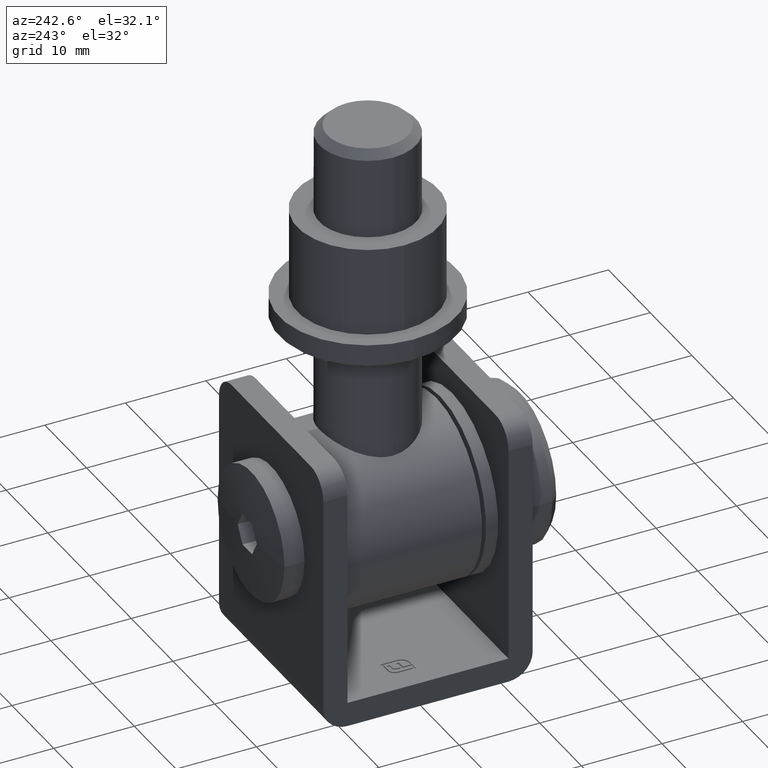
[diagram: clean part render]
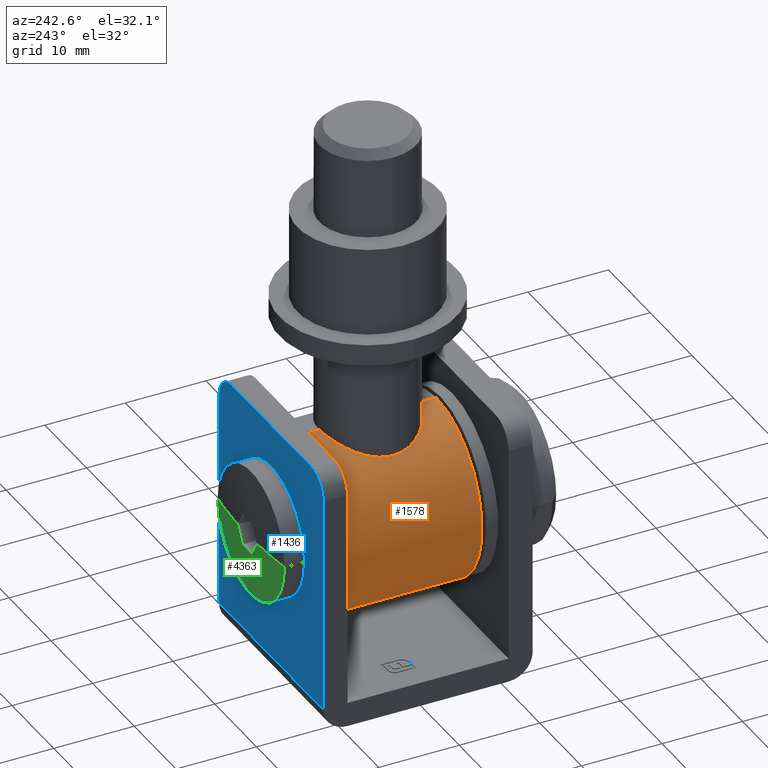
[diagram: same view with three faces highlighted in distinct colors, each labeled with its STEP entity id]
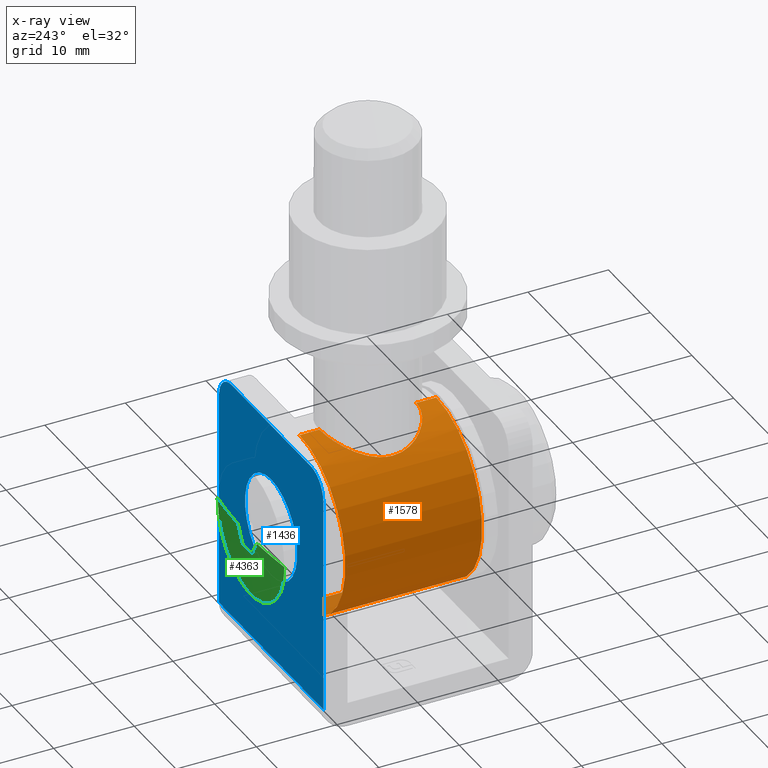
[diagram: x-ray of the same camera — body ghosted, the three highlighted faces saturated]
A machine part, auxiliary view with three faces highlighted in distinct colors.
The next image is the same camera in x-ray (body ghosted, the three faces saturated) — at least one of them is partly hidden behind the body in this view.
Their STEP definitions:

[orange] entity #1578 — the highlighted cylindrical surface (partial cylindrical patch) has radius 11 mm, axis along (-0, -1, -0).
#10 = CARTESIAN_POINT ( 'NONE',  ( -4.513457185459233578, -3.971868827695192561, 21.03569045006614857 ) ) ;
#57 = CARTESIAN_POINT ( 'NONE',  ( -5.791253910990268317, -1.581255140548660787, 20.35232784984154009 ) ) ;
#203 = EDGE_CURVE ( 'NONE', #4862, #2101, #4076, .T. ) ;
#292 = VECTOR ( 'NONE', #5458, 1000.000000000000000 ) ;
#312 = EDGE_CURVE ( 'NONE', #2101, #1253, #13552, .T. ) ;
#581 = DIRECTION ( 'NONE',  ( -0.000000000000000000, -1.000000000000000000, -0.000000000000000000 ) ) ;
#756 = VERTEX_POINT ( 'NONE', #3815 ) ;
#769 = CARTESIAN_POINT ( 'NONE',  ( -1.001046619249588598, 5.919240007934912562, 21.95610729366966041 ) ) ;
#860 = CARTESIAN_POINT ( 'NONE',  ( -3.975785081487944961, 4.497837721262770039, 21.25760115227601688 ) ) ;
#1053 = CYLINDRICAL_SURFACE ( 'NONE', #3386, 11.00000000000000000 ) ;
#1176 = CARTESIAN_POINT ( 'NONE',  ( -2.143428767652197475, -5.607477301903873723, 21.79071834266022023 ) ) ;
#1222 = ORIENTED_EDGE ( 'NONE', *, *, #203, .F. ) ;
#1253 = VERTEX_POINT ( 'NONE', #12366 ) ;
#1378 = DIRECTION ( 'NONE',  ( -0.000000000000000000, -1.000000000000000000, -0.000000000000000000 ) ) ;
#1430 = EDGE_CURVE ( 'NONE', #756, #5301, #7629, .T. ) ;
#1578 = ADVANCED_FACE ( 'NONE', ( #9820 ), #1053, .T. ) ;
#1804 = CIRCLE ( 'NONE', #9897, 11.00000000000000000 ) ;
#1994 = CARTESIAN_POINT ( 'NONE',  ( -6.000000000000000888, 7.347873932393515319E-16, 20.21954445729288707 ) ) ;
#2101 = VERTEX_POINT ( 'NONE', #7552 ) ;
#2239 = EDGE_CURVE ( 'NONE', #5301, #4862, #3499, .T. ) ;
#2349 = CARTESIAN_POINT ( 'NONE',  ( -4.761499154567924386, -3.671170907450591603, 20.91900688134670716 ) ) ;
#2447 = CARTESIAN_POINT ( 'NONE',  ( -1.386829978470363045, -5.840981533653454072, 21.91402477991755759 ) ) ;
#2798 = CARTESIAN_POINT ( 'NONE',  ( 1.347111479062088405E-15, 8.500000000000000000, 22.00000000000000000 ) ) ;
#3070 = CARTESIAN_POINT ( 'NONE',  ( -4.523571659675896584, 3.960355311190218330, 21.03111966752034334 ) ) ;
#3261 = CARTESIAN_POINT ( 'NONE',  ( -1.292941717051143813E-15, 6.000000000000042633, 22.00000000000002132 ) ) ;
#3305 = CARTESIAN_POINT ( 'NONE',  ( -1.292941717051143813E-15, 6.000000000000042633, 22.00000000000002132 ) ) ;
#3386 = AXIS2_PLACEMENT_3D ( 'NONE', #6304, #581, #14734 ) ;
#3499 = B_SPLINE_CURVE_WITH_KNOTS ( 'NONE', 3,
 ( #3261, #7746, #7900, #5562, #769, #11285, #13762, #13712, #5466, #13658, #5517, #11439, #7854, #860, #4342, #3070, #12476, #4292, #6693, #8933, #12519, #12426, #6651, #14914, #7797, #1994 ),
 .UNSPECIFIED., .F., .F.,
 ( 4, 2, 2, 2, 2, 2, 2, 2, 2, 2, 2, 2, 4 ),
 ( 0.009581549305124266100, 0.01017984123933994393, 0.01077813317355562177, 0.01137642510777129960, 0.01197471704198697744, 0.01317130091041833310, 0.01376959284463400920, 0.01436788477884968704, 0.01556446864728104271, 0.01676105251571239838, 0.01735934444992807274, 0.01795763638414375404, 0.01915422025257510624 ),
 .UNSPECIFIED. ) ;
#3574 = CARTESIAN_POINT ( 'NONE',  ( -5.377850147246014956, -2.689548255154488476, 20.59739079401868977 ) ) ;
#3621 = CARTESIAN_POINT ( 'NONE',  ( 0.000000000000000000, 8.500000000000000000, 11.00000000000000000 ) ) ;
#3641 = VERTEX_POINT ( 'NONE', #5719 ) ;
#3763 = DIRECTION ( 'NONE',  ( 0.000000000000000000, 1.000000000000000000, 0.000000000000000000 ) ) ;
#3815 = CARTESIAN_POINT ( 'NONE',  ( 1.347111479062088405E-15, 8.500000000000000000, 22.00000000000000000 ) ) ;
#4076 = B_SPLINE_CURVE_WITH_KNOTS ( 'NONE', 3,
 ( #4758, #8109, #4610, #14065, #57, #9432, #11806, #3574, #5879, #2349, #10, #14157, #12777, #8153, #11654, #1176, #10557, #9342, #2447, #5772, #13969, #10612 ),
 .UNSPECIFIED., .F., .F.,
 ( 4, 2, 2, 2, 2, 2, 2, 2, 2, 2, 4 ),
 ( 0.01915422025257510624, 0.02034937374240532518, 0.02094695048732043291, 0.02154452723223554064, 0.02273968072206575958, 0.02393483421189597851, 0.02512998770172619745, 0.02632514119155641985, 0.02692271793647153105, 0.02752029468138664225, 0.02871544817121686466 ),
 .UNSPECIFIED. ) ;
#4292 = CARTESIAN_POINT ( 'NONE',  ( -5.201053738164421958, 3.016632186587868691, 20.69576801486032025 ) ) ;
#4342 = CARTESIAN_POINT ( 'NONE',  ( -4.117747638638323160, 4.368172738372697594, 21.20125825428278787 ) ) ;
#4610 = CARTESIAN_POINT ( 'NONE',  ( -5.958863529669606862, -0.8059955195657841909, 20.24665908453231467 ) ) ;
#4758 = CARTESIAN_POINT ( 'NONE',  ( -6.000000000000000888, 7.347873932393515319E-16, 20.21954445729288707 ) ) ;
#4862 = VERTEX_POINT ( 'NONE', #7861 ) ;
#4894 = CARTESIAN_POINT ( 'NONE',  ( 0.000000000000000000, -8.500000000000000000, 11.00000000000000000 ) ) ;
#4951 = EDGE_CURVE ( 'NONE', #14796, #756, #11208, .T. ) ;
#5301 = VERTEX_POINT ( 'NONE', #3305 ) ;
#5458 = DIRECTION ( 'NONE',  ( -0.000000000000000000, -1.000000000000000000, -0.000000000000000000 ) ) ;
#5466 = CARTESIAN_POINT ( 'NONE',  ( -2.150698647737687264, 5.604767092694154407, 21.78930433538998557 ) ) ;
#5517 = CARTESIAN_POINT ( 'NONE',  ( -3.037965804154589833, 5.188640270768133611, 21.57758205013321628 ) ) ;
#5562 = CARTESIAN_POINT ( 'NONE',  ( -0.8038411932375235658, 5.949298266934230917, 21.97241367963327008 ) ) ;
#5719 = CARTESIAN_POINT ( 'NONE',  ( 0.000000000000000000, -8.500000000000000000, 0.000000000000000000 ) ) ;
#5772 = CARTESIAN_POINT ( 'NONE',  ( -0.7960875477184911064, -5.960511326977456115, 21.97830504949292774 ) ) ;
#5879 = CARTESIAN_POINT ( 'NONE',  ( -5.193145506896128083, -3.029952107685403906, 20.69999028119921292 ) ) ;
#5973 = DIRECTION ( 'NONE',  ( 0.000000000000000000, 0.000000000000000000, 1.000000000000000000 ) ) ;
#6078 = ORIENTED_EDGE ( 'NONE', *, *, #13196, .T. ) ;
#6304 = CARTESIAN_POINT ( 'NONE',  ( 0.000000000000000000, 8.500000000000000000, 11.00000000000000000 ) ) ;
#6651 = CARTESIAN_POINT ( 'NONE',  ( -5.842202551572516889, 1.381458331519348048, 20.32045302998344383 ) ) ;
#6693 = CARTESIAN_POINT ( 'NONE',  ( -5.383966512014681349, 2.676570559333717902, 20.59390977538225442 ) ) ;
#7552 = CARTESIAN_POINT ( 'NONE',  ( 1.347111063493796830E-15, -6.000000000000000888, 22.00000000000000000 ) ) ;
#7629 = LINE ( 'NONE', #2798, #9092 ) ;
#7660 = VECTOR ( 'NONE', #1378, 1000.000000000000000 ) ;
#7746 = CARTESIAN_POINT ( 'NONE',  ( -0.2009006042407775194, 6.000000000000026645, 22.00000000000001421 ) ) ;
#7797 = CARTESIAN_POINT ( 'NONE',  ( -6.000000000000001776, 0.3997942723990183245, 20.21954445729288352 ) ) ;
#7854 = CARTESIAN_POINT ( 'NONE',  ( -3.677841293588136384, 4.744564742963712334, 21.36815952001772700 ) ) ;
#7861 = CARTESIAN_POINT ( 'NONE',  ( -6.000000000000000888, 7.347873932393515319E-16, 20.21954445729288707 ) ) ;
#7900 = CARTESIAN_POINT ( 'NONE',  ( -0.4043319050806992165, 5.989726725271028229, 21.99438667372957923 ) ) ;
#8109 = CARTESIAN_POINT ( 'NONE',  ( -6.000000000000000000, -0.3993163642580316863, 20.21954445729289063 ) ) ;
#8153 = CARTESIAN_POINT ( 'NONE',  ( -3.027592523495518329, -5.194801538401251584, 21.58060374468183440 ) ) ;
#8630 = ORIENTED_EDGE ( 'NONE', *, *, #312, .F. ) ;
#8933 = CARTESIAN_POINT ( 'NONE',  ( -5.609246724634285641, 2.138722170497243891, 20.46276393171398666 ) ) ;
#9092 = VECTOR ( 'NONE', #9880, 1000.000000000000000 ) ;
#9342 = CARTESIAN_POINT ( 'NONE',  ( -1.581400185261139679, -5.791221588511754170, 21.88741450015095680 ) ) ;
#9407 = ORIENTED_EDGE ( 'NONE', *, *, #4951, .F. ) ;
#9432 = CARTESIAN_POINT ( 'NONE',  ( -5.674758499177897875, -1.958597880392970225, 20.42346932124734238 ) ) ;
#9473 = DIRECTION ( 'NONE',  ( 0.000000000000000000, 0.000000000000000000, 1.000000000000000000 ) ) ;
#9533 = EDGE_CURVE ( 'NONE', #3641, #1253, #1804, .T. ) ;
#9820 = FACE_OUTER_BOUND ( 'NONE', #12377, .T. ) ;
#9880 = DIRECTION ( 'NONE',  ( -0.000000000000000000, -1.000000000000000000, -0.000000000000000000 ) ) ;
#9894 = CARTESIAN_POINT ( 'NONE',  ( 0.000000000000000000, 8.500000000000000000, 0.000000000000000000 ) ) ;
#9897 = AXIS2_PLACEMENT_3D ( 'NONE', #4894, #3763, #9473 ) ;
#10094 = CARTESIAN_POINT ( 'NONE',  ( 0.000000000000000000, 8.500000000000000000, 0.000000000000000000 ) ) ;
#10557 = CARTESIAN_POINT ( 'NONE',  ( -1.959143855972670378, -5.674577463106227349, 21.82581989484610929 ) ) ;
#10612 = CARTESIAN_POINT ( 'NONE',  ( 1.347111063493796830E-15, -6.000000000000000888, 22.00000000000000000 ) ) ;
#11208 = CIRCLE ( 'NONE', #12615, 11.00000000000000000 ) ;
#11255 = LINE ( 'NONE', #10094, #292 ) ;
#11285 = CARTESIAN_POINT ( 'NONE',  ( -1.390547778561539882, 5.840023414421033010, 21.91351264441701474 ) ) ;
#11439 = CARTESIAN_POINT ( 'NONE',  ( -3.521227206168301649, 4.861971306394409886, 21.42255144032249348 ) ) ;
#11654 = CARTESIAN_POINT ( 'NONE',  ( -2.683240172933292644, -5.380759841121096620, 21.67407040940090113 ) ) ;
#11806 = CARTESIAN_POINT ( 'NONE',  ( -5.606815275045871516, -2.145310694811336738, 20.46421777202687764 ) ) ;
#11904 = DIRECTION ( 'NONE',  ( 0.000000000000000000, 1.000000000000000000, 0.000000000000000000 ) ) ;
#12199 = ORIENTED_EDGE ( 'NONE', *, *, #2239, .F. ) ;
#12366 = CARTESIAN_POINT ( 'NONE',  ( 1.347111479062088405E-15, -8.500000000000000000, 22.00000000000000000 ) ) ;
#12377 = EDGE_LOOP ( 'NONE', ( #14044, #9407, #6078, #12825, #8630, #1222, #12199 ) ) ;
#12426 = CARTESIAN_POINT ( 'NONE',  ( -5.792493358737633713, 1.576748181494528112, 20.35155989378462849 ) ) ;
#12476 = CARTESIAN_POINT ( 'NONE',  ( -4.768448969441598351, 3.662365924134748596, 20.91568312377386718 ) ) ;
#12519 = CARTESIAN_POINT ( 'NONE',  ( -5.676086657068316832, 1.954777327553430144, 20.42266904966485441 ) ) ;
#12615 = AXIS2_PLACEMENT_3D ( 'NONE', #3621, #11904, #5973 ) ;
#12777 = CARTESIAN_POINT ( 'NONE',  ( -3.674963401419040210, -4.758878387806581678, 21.37353055080726705 ) ) ;
#12825 = ORIENTED_EDGE ( 'NONE', *, *, #9533, .T. ) ;
#13196 = EDGE_CURVE ( 'NONE', #14796, #3641, #11255, .T. ) ;
#13552 = LINE ( 'NONE', #14206, #7660 ) ;
#13658 = CARTESIAN_POINT ( 'NONE',  ( -2.695984163703990522, 5.374694850497953702, 21.67099059362535129 ) ) ;
#13712 = CARTESIAN_POINT ( 'NONE',  ( -1.962579997959062128, 5.673427325574507130, 21.82521551752637734 ) ) ;
#13762 = CARTESIAN_POINT ( 'NONE',  ( -1.582843112943105313, 5.790863972394197035, 21.88722273718562050 ) ) ;
#13969 = CARTESIAN_POINT ( 'NONE',  ( -0.3994412993526967881, -6.000000000000000888, 21.99999999999998579 ) ) ;
#14044 = ORIENTED_EDGE ( 'NONE', *, *, #1430, .F. ) ;
#14065 = CARTESIAN_POINT ( 'NONE',  ( -5.840218722010387609, -1.389700008914172669, 20.32169700091013453 ) ) ;
#14157 = CARTESIAN_POINT ( 'NONE',  ( -3.971125235236089068, -4.514111442516841599, 21.26238485638662112 ) ) ;
#14206 = CARTESIAN_POINT ( 'NONE',  ( 1.347111479062088405E-15, 8.500000000000000000, 22.00000000000000000 ) ) ;
#14734 = DIRECTION ( 'NONE',  ( 0.000000000000000000, 0.000000000000000000, -1.000000000000000000 ) ) ;
#14796 = VERTEX_POINT ( 'NONE', #9894 ) ;
#14914 = CARTESIAN_POINT ( 'NONE',  ( -5.960442806589016485, 0.7950802793931016632, 20.24563804722491867 ) ) ;

[blue] entity #1436 — the highlighted planar face has unit normal (0, -1, 0).
#330 = CARTESIAN_POINT ( 'NONE',  ( -9.500000000000001776, 13.00000000000000178, 15.00000000000000000 ) ) ;
#388 = CARTESIAN_POINT ( 'NONE',  ( 12.50000000000000000, 13.00000000000000178, 15.00000000000000000 ) ) ;
#400 = ORIENTED_EDGE ( 'NONE', *, *, #6115, .F. ) ;
#618 = ORIENTED_EDGE ( 'NONE', *, *, #4459, .F. ) ;
#817 = ORIENTED_EDGE ( 'NONE', *, *, #12028, .F. ) ;
#827 = CARTESIAN_POINT ( 'NONE',  ( 9.500000000000001776, 13.00000000000000178, 12.00000000000000000 ) ) ;
#1165 = LINE ( 'NONE', #6148, #8646 ) ;
#1230 = VECTOR ( 'NONE', #9088, 1000.000000000000000 ) ;
#1273 = AXIS2_PLACEMENT_3D ( 'NONE', #827, #12531, #10156 ) ;
#1436 = ADVANCED_FACE ( 'NONE', ( #12225, #15137 ), #7373, .F. ) ;
#1572 = CARTESIAN_POINT ( 'NONE',  ( -9.500000000000001776, 13.00000000000000178, 12.00000000000000000 ) ) ;
#1600 = AXIS2_PLACEMENT_3D ( 'NONE', #3501, #12856, #6002 ) ;
#1785 = LINE ( 'NONE', #11171, #13694 ) ;
#1863 = DIRECTION ( 'NONE',  ( 0.000000000000000000, 1.000000000000000000, 0.000000000000000000 ) ) ;
#1952 = EDGE_CURVE ( 'NONE', #8049, #12206, #5986, .T. ) ;
#2185 = LINE ( 'NONE', #8243, #13556 ) ;
#2426 = DIRECTION ( 'NONE',  ( -1.000000000000000000, 0.000000000000000000, 0.000000000000000000 ) ) ;
#2524 = ORIENTED_EDGE ( 'NONE', *, *, #1952, .F. ) ;
#2567 = DIRECTION ( 'NONE',  ( -0.000000000000000000, -0.000000000000000000, 1.000000000000000000 ) ) ;
#2757 = EDGE_CURVE ( 'NONE', #5582, #6417, #1785, .T. ) ;
#2761 = DIRECTION ( 'NONE',  ( 0.000000000000000000, 0.000000000000000000, -1.000000000000000000 ) ) ;
#2842 = AXIS2_PLACEMENT_3D ( 'NONE', #4157, #1863, #5332 ) ;
#3142 = VERTEX_POINT ( 'NONE', #14381 ) ;
#3501 = CARTESIAN_POINT ( 'NONE',  ( 0.000000000000000000, 13.00000000000000178, 1.749999999999999778 ) ) ;
#4104 = VERTEX_POINT ( 'NONE', #7481 ) ;
#4157 = CARTESIAN_POINT ( 'NONE',  ( 0.000000000000000000, 13.00000000000000178, 1.749999999999999778 ) ) ;
#4432 = CIRCLE ( 'NONE', #1273, 2.999999999999999112 ) ;
#4459 = EDGE_CURVE ( 'NONE', #4104, #14011, #1165, .T. ) ;
#5332 = DIRECTION ( 'NONE',  ( 0.000000000000000000, 0.000000000000000000, 1.000000000000000000 ) ) ;
#5370 = EDGE_LOOP ( 'NONE', ( #8806, #5870, #2524, #9507, #618, #8688 ) ) ;
#5582 = VERTEX_POINT ( 'NONE', #6413 ) ;
#5870 = ORIENTED_EDGE ( 'NONE', *, *, #14628, .T. ) ;
#5986 = LINE ( 'NONE', #6621, #1230 ) ;
#6002 = DIRECTION ( 'NONE',  ( 0.000000000000000000, 0.000000000000000000, 1.000000000000000000 ) ) ;
#6077 = EDGE_CURVE ( 'NONE', #8049, #14011, #4432, .T. ) ;
#6115 = EDGE_CURVE ( 'NONE', #3142, #10489, #8992, .T. ) ;
#6148 = CARTESIAN_POINT ( 'NONE',  ( 12.50000000000000000, 13.00000000000000178, 15.00000000000000000 ) ) ;
#6413 = CARTESIAN_POINT ( 'NONE',  ( -12.50000000000000000, 13.00000000000000178, -15.00000000000000711 ) ) ;
#6417 = VERTEX_POINT ( 'NONE', #11740 ) ;
#6501 = DIRECTION ( 'NONE',  ( 0.000000000000000000, -0.000000000000000000, -1.000000000000000000 ) ) ;
#6621 = CARTESIAN_POINT ( 'NONE',  ( 12.50000000000000000, 13.00000000000000178, 15.00000000000000000 ) ) ;
#6801 = AXIS2_PLACEMENT_3D ( 'NONE', #1572, #7257, #2761 ) ;
#7257 = DIRECTION ( 'NONE',  ( -0.000000000000000000, 1.000000000000000000, -0.000000000000000000 ) ) ;
#7373 = PLANE ( 'NONE',  #11809 ) ;
#7481 = CARTESIAN_POINT ( 'NONE',  ( 12.50000000000000000, 13.00000000000000178, -15.00000000000000711 ) ) ;
#7959 = EDGE_CURVE ( 'NONE', #4104, #5582, #2185, .T. ) ;
#8049 = VERTEX_POINT ( 'NONE', #10847 ) ;
#8243 = CARTESIAN_POINT ( 'NONE',  ( 12.50000000000000000, 13.00000000000000178, -15.00000000000000711 ) ) ;
#8536 = CARTESIAN_POINT ( 'NONE',  ( 12.50000000000000000, 13.00000000000000178, 12.00000000000000000 ) ) ;
#8646 = VECTOR ( 'NONE', #2567, 1000.000000000000000 ) ;
#8688 = ORIENTED_EDGE ( 'NONE', *, *, #7959, .T. ) ;
#8790 = CIRCLE ( 'NONE', #6801, 2.999999999999999112 ) ;
#8806 = ORIENTED_EDGE ( 'NONE', *, *, #2757, .T. ) ;
#8992 = CIRCLE ( 'NONE', #2842, 6.250000000000000000 ) ;
#9088 = DIRECTION ( 'NONE',  ( -1.000000000000000000, -0.000000000000000000, -0.000000000000000000 ) ) ;
#9507 = ORIENTED_EDGE ( 'NONE', *, *, #6077, .T. ) ;
#10156 = DIRECTION ( 'NONE',  ( 0.000000000000000000, 0.000000000000000000, -1.000000000000000000 ) ) ;
#10489 = VERTEX_POINT ( 'NONE', #13563 ) ;
#10847 = CARTESIAN_POINT ( 'NONE',  ( 9.500000000000001776, 13.00000000000000178, 15.00000000000000000 ) ) ;
#11171 = CARTESIAN_POINT ( 'NONE',  ( -12.50000000000000000, 13.00000000000000178, 15.00000000000000000 ) ) ;
#11740 = CARTESIAN_POINT ( 'NONE',  ( -12.50000000000000000, 13.00000000000000178, 12.00000000000000000 ) ) ;
#11809 = AXIS2_PLACEMENT_3D ( 'NONE', #388, #13381, #6501 ) ;
#12028 = EDGE_CURVE ( 'NONE', #10489, #3142, #13301, .T. ) ;
#12206 = VERTEX_POINT ( 'NONE', #330 ) ;
#12225 = FACE_BOUND ( 'NONE', #13908, .T. ) ;
#12364 = DIRECTION ( 'NONE',  ( -0.000000000000000000, -0.000000000000000000, 1.000000000000000000 ) ) ;
#12531 = DIRECTION ( 'NONE',  ( -0.000000000000000000, 1.000000000000000000, -0.000000000000000000 ) ) ;
#12856 = DIRECTION ( 'NONE',  ( 0.000000000000000000, 1.000000000000000000, 0.000000000000000000 ) ) ;
#13301 = CIRCLE ( 'NONE', #1600, 6.250000000000000000 ) ;
#13381 = DIRECTION ( 'NONE',  ( 0.000000000000000000, -1.000000000000000000, 0.000000000000000000 ) ) ;
#13556 = VECTOR ( 'NONE', #2426, 1000.000000000000000 ) ;
#13563 = CARTESIAN_POINT ( 'NONE',  ( 0.000000000000000000, 13.00000000000000178, 8.000000000000000000 ) ) ;
#13694 = VECTOR ( 'NONE', #12364, 1000.000000000000000 ) ;
#13908 = EDGE_LOOP ( 'NONE', ( #817, #400 ) ) ;
#14011 = VERTEX_POINT ( 'NONE', #8536 ) ;
#14381 = CARTESIAN_POINT ( 'NONE',  ( 7.654042494670957606E-16, 13.00000000000000178, -4.500000000000000888 ) ) ;
#14628 = EDGE_CURVE ( 'NONE', #6417, #12206, #8790, .T. ) ;
#15137 = FACE_OUTER_BOUND ( 'NONE', #5370, .T. ) ;

[green] entity #4363 — the highlighted spherical surface has radius 64.25 mm.
#40 = VERTEX_POINT ( 'NONE', #14769 ) ;
#521 = CIRCLE ( 'NONE', #8970, 7.999999999999998224 ) ;
#628 = AXIS2_PLACEMENT_3D ( 'NONE', #7918, #926, #5629 ) ;
#665 = VERTEX_POINT ( 'NONE', #6988 ) ;
#835 = CIRCLE ( 'NONE', #628, 64.21886405099331796 ) ;
#926 = DIRECTION ( 'NONE',  ( -0.8660254037844385966, -0.000000000000000000, 0.5000000000000004441 ) ) ;
#970 = DIRECTION ( 'NONE',  ( 1.000000000000000000, 0.000000000000000000, 0.000000000000000000 ) ) ;
#1144 = DIRECTION ( 'NONE',  ( -0.000000000000000000, 0.000000000000000000, 1.000000000000000000 ) ) ;
#1297 = CARTESIAN_POINT ( 'NONE',  ( 9.477508767491671480E-15, -48.24999999999968026, 0.000000000000000000 ) ) ;
#1463 = EDGE_CURVE ( 'NONE', #40, #5920, #521, .T. ) ;
#1911 = ORIENTED_EDGE ( 'NONE', *, *, #1463, .F. ) ;
#2143 = EDGE_CURVE ( 'NONE', #4087, #7632, #11470, .T. ) ;
#2263 = SPHERICAL_SURFACE ( 'NONE', #12132, 64.24999999999970157 ) ;
#3000 = CARTESIAN_POINT ( 'NONE',  ( 9.477508767491671480E-15, -48.24999999999968026, 0.000000000000000000 ) ) ;
#3844 = ORIENTED_EDGE ( 'NONE', *, *, #12552, .F. ) ;
#3932 = DIRECTION ( 'NONE',  ( 1.000000000000000000, 0.000000000000000000, -1.224646799147352961E-16 ) ) ;
#4087 = VERTEX_POINT ( 'NONE', #6319 ) ;
#4181 = EDGE_CURVE ( 'NONE', #11564, #5920, #6659, .T. ) ;
#4363 = ADVANCED_FACE ( 'NONE', ( #11025 ), #2263, .T. ) ;
#4824 = CARTESIAN_POINT ( 'NONE',  ( 8.000000000000001776, 15.50000000000001421, 0.000000000000000000 ) ) ;
#5070 = ORIENTED_EDGE ( 'NONE', *, *, #4181, .T. ) ;
#5108 = EDGE_CURVE ( 'NONE', #7632, #40, #6282, .T. ) ;
#5516 = CIRCLE ( 'NONE', #11498, 64.21886405099330375 ) ;
#5621 = DIRECTION ( 'NONE',  ( -9.860002853568459598E-17, -1.000000000000000000, -0.000000000000000000 ) ) ;
#5629 = DIRECTION ( 'NONE',  ( -0.5000000000000003331, -1.172350211576638810E-13, -0.8660254037844384856 ) ) ;
#5920 = VERTEX_POINT ( 'NONE', #4824 ) ;
#6079 = CARTESIAN_POINT ( 'NONE',  ( 2.309401076758505589, 15.95848204611807830, 6.505213034913026604E-16 ) ) ;
#6282 = CIRCLE ( 'NONE', #12253, 64.24999999999970157 ) ;
#6319 = CARTESIAN_POINT ( 'NONE',  ( -1.154700538379250352, 15.95848204611807830, -1.999999999999998224 ) ) ;
#6617 = ORIENTED_EDGE ( 'NONE', *, *, #2143, .F. ) ;
#6659 = CIRCLE ( 'NONE', #9750, 64.24999999999970157 ) ;
#6988 = CARTESIAN_POINT ( 'NONE',  ( 1.154700538379253683, 15.95848204611807830, -1.999999999999999112 ) ) ;
#7596 = CARTESIAN_POINT ( 'NONE',  ( -1.732050807568872974, -48.24999999999968026, -1.000000000000002442 ) ) ;
#7632 = VERTEX_POINT ( 'NONE', #14904 ) ;
#7774 = DIRECTION ( 'NONE',  ( 0.000000000000000000, 0.000000000000000000, -1.000000000000000000 ) ) ;
#7918 = CARTESIAN_POINT ( 'NONE',  ( 1.732050807568880968, -48.24999999999968026, -0.9999999999999974465 ) ) ;
#8217 = DIRECTION ( 'NONE',  ( -1.000000000000000000, -8.708887285997891112E-14, 1.890887438026837416E-16 ) ) ;
#8500 = ORIENTED_EDGE ( 'NONE', *, *, #5108, .F. ) ;
#8513 = DIRECTION ( 'NONE',  ( 1.224646799147353207E-16, -1.207502093420638320E-32, 1.000000000000000000 ) ) ;
#8627 = DIRECTION ( 'NONE',  ( -0.4999999999999996669, -1.172350211576638810E-13, 0.8660254037844389297 ) ) ;
#8782 = DIRECTION ( 'NONE',  ( 0.8660254037844389297, 0.000000000000000000, 0.4999999999999998335 ) ) ;
#8820 = EDGE_LOOP ( 'NONE', ( #8500, #6617, #10292, #3844, #5070, #1911 ) ) ;
#8970 = AXIS2_PLACEMENT_3D ( 'NONE', #10257, #5621, #970 ) ;
#9449 = DIRECTION ( 'NONE',  ( 1.000000000000000000, -1.079983486989457049E-16, 0.000000000000000000 ) ) ;
#9750 = AXIS2_PLACEMENT_3D ( 'NONE', #3000, #7774, #13546 ) ;
#10257 = CARTESIAN_POINT ( 'NONE',  ( 1.528300442303112667E-15, 15.50000000000001421, 0.000000000000000000 ) ) ;
#10292 = ORIENTED_EDGE ( 'NONE', *, *, #14421, .F. ) ;
#10974 = CARTESIAN_POINT ( 'NONE',  ( 9.477508767491671480E-15, -48.24999999999968026, 0.000000000000000000 ) ) ;
#11025 = FACE_OUTER_BOUND ( 'NONE', #8820, .T. ) ;
#11470 = CIRCLE ( 'NONE', #11929, 64.21886405099331796 ) ;
#11498 = AXIS2_PLACEMENT_3D ( 'NONE', #15077, #13049, #8217 ) ;
#11564 = VERTEX_POINT ( 'NONE', #6079 ) ;
#11929 = AXIS2_PLACEMENT_3D ( 'NONE', #7596, #8782, #8627 ) ;
#12132 = AXIS2_PLACEMENT_3D ( 'NONE', #1297, #1144, #9449 ) ;
#12253 = AXIS2_PLACEMENT_3D ( 'NONE', #10974, #8513, #3932 ) ;
#12552 = EDGE_CURVE ( 'NONE', #11564, #665, #835, .T. ) ;
#13049 = DIRECTION ( 'NONE',  ( 1.877893248421448543E-16, 0.000000000000000000, 1.000000000000000000 ) ) ;
#13546 = DIRECTION ( 'NONE',  ( -1.000000000000000000, 0.000000000000000000, 0.000000000000000000 ) ) ;
#14421 = EDGE_CURVE ( 'NONE', #665, #4087, #5516, .T. ) ;
#14769 = CARTESIAN_POINT ( 'NONE',  ( -7.999999999999984901, 15.50000000000001421, 9.797174393178825657E-16 ) ) ;
#14904 = CARTESIAN_POINT ( 'NONE',  ( -2.309401076758500260, 15.95848204611807830, -6.505213034913026604E-16 ) ) ;
#15077 = CARTESIAN_POINT ( 'NONE',  ( 9.101930117807383152E-15, -48.24999999999968026, -1.999999999999999112 ) ) ;